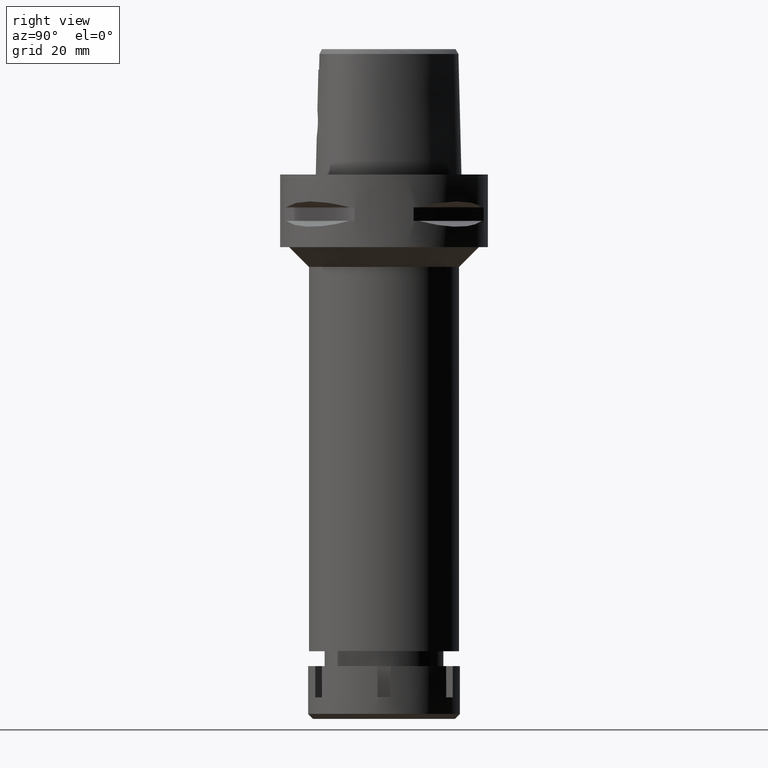
[diagram: clean part render]
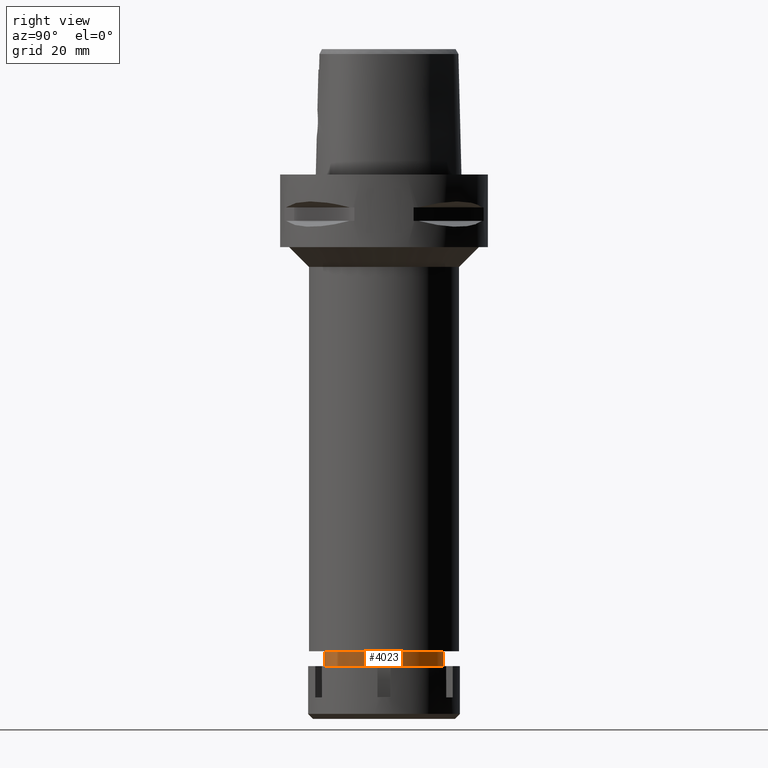
[diagram: same view with one face highlighted and labeled with its STEP entity id]
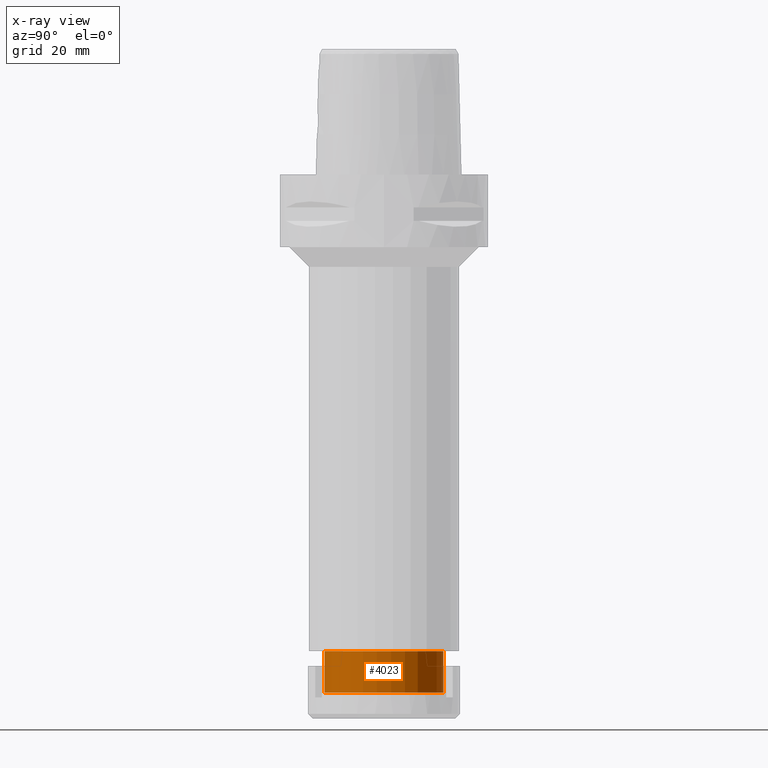
[diagram: x-ray of the same camera — body ghosted, the highlighted face saturated]
A machine part, right view. The second image highlights one B-rep face of the part: STEP entity #4023.
The next image is the same camera in x-ray: the body ghosted, the highlighted face saturated — about 0% of this face is hidden behind the body in this view.
In plain terms, the highlighted cylindrical surface (partial cylindrical patch) has radius 18 mm, axis along (0, 0, -1).
Its self-contained STEP definition (entity closure, byte-faithful):
#31 = EDGE_CURVE ( 'NONE', #2911, #3392, #583, .T. ) ;
#118 = CARTESIAN_POINT ( 'NONE',  ( 0.0000000000000000000, 18.00000000000000000, -144.5000000000000000 ) ) ;
#368 = DIRECTION ( 'NONE',  ( 0.0000000000000000000, 0.0000000000000000000, -1.000000000000000000 ) ) ;
#534 = DIRECTION ( 'NONE',  ( 0.0000000000000000000, 0.0000000000000000000, 1.000000000000000000 ) ) ;
#583 = CIRCLE ( 'NONE', #4000, 18.00000000000000000 ) ;
#739 = EDGE_LOOP ( 'NONE', ( #3977, #2343, #4575, #4087 ) ) ;
#1255 = DIRECTION ( 'NONE',  ( 0.0000000000000000000, 1.000000000000000000, 0.0000000000000000000 ) ) ;
#1270 = DIRECTION ( 'NONE',  ( 0.0000000000000000000, 0.0000000000000000000, -1.000000000000000000 ) ) ;
#1273 = EDGE_CURVE ( 'NONE', #3874, #1800, #4099, .T. ) ;
#1600 = VECTOR ( 'NONE', #368, 1000.000000000000000 ) ;
#1800 = VERTEX_POINT ( 'NONE', #5312 ) ;
#2056 = AXIS2_PLACEMENT_3D ( 'NONE', #3861, #1270, #3366 ) ;
#2247 = DIRECTION ( 'NONE',  ( 0.0000000000000000000, -1.000000000000000000, 0.0000000000000000000 ) ) ;
#2343 = ORIENTED_EDGE ( 'NONE', *, *, #4547, .T. ) ;
#2375 = LINE ( 'NONE', #5524, #1600 ) ;
#2599 = LINE ( 'NONE', #4316, #2776 ) ;
#2776 = VECTOR ( 'NONE', #3437, 1000.000000000000000 ) ;
#2911 = VERTEX_POINT ( 'NONE', #118 ) ;
#3303 = EDGE_CURVE ( 'NONE', #2911, #1800, #2375, .T. ) ;
#3366 = DIRECTION ( 'NONE',  ( 0.0000000000000000000, -1.000000000000000000, 0.0000000000000000000 ) ) ;
#3392 = VERTEX_POINT ( 'NONE', #5135 ) ;
#3437 = DIRECTION ( 'NONE',  ( 0.0000000000000000000, 0.0000000000000000000, -1.000000000000000000 ) ) ;
#3861 = CARTESIAN_POINT ( 'NONE',  ( 0.0000000000000000000, 1.320781572880000066E-14, 7.849999999999999645 ) ) ;
#3872 = DIRECTION ( 'NONE',  ( 0.0000000000000000000, 0.0000000000000000000, -1.000000000000000000 ) ) ;
#3874 = VERTEX_POINT ( 'NONE', #4475 ) ;
#3977 = ORIENTED_EDGE ( 'NONE', *, *, #31, .T. ) ;
#4000 = AXIS2_PLACEMENT_3D ( 'NONE', #5164, #3872, #1255 ) ;
#4023 = ADVANCED_FACE ( 'NONE', ( #5462 ), #4650, .T. ) ;
#4087 = ORIENTED_EDGE ( 'NONE', *, *, #3303, .F. ) ;
#4099 = CIRCLE ( 'NONE', #4548, 18.00000000000000000 ) ;
#4316 = CARTESIAN_POINT ( 'NONE',  ( 0.0000000000000000000, -18.00000000000000000, -144.5000000000000000 ) ) ;
#4384 = CARTESIAN_POINT ( 'NONE',  ( 0.0000000000000000000, 1.320781572880000066E-14, -157.0000000000000000 ) ) ;
#4475 = CARTESIAN_POINT ( 'NONE',  ( 0.0000000000000000000, -18.00000000000000000, -157.0000000000000000 ) ) ;
#4547 = EDGE_CURVE ( 'NONE', #3392, #3874, #2599, .T. ) ;
#4548 = AXIS2_PLACEMENT_3D ( 'NONE', #4384, #534, #2247 ) ;
#4575 = ORIENTED_EDGE ( 'NONE', *, *, #1273, .T. ) ;
#4650 = CYLINDRICAL_SURFACE ( 'NONE', #2056, 18.00000000000000000 ) ;
#5135 = CARTESIAN_POINT ( 'NONE',  ( 0.0000000000000000000, -18.00000000000000000, -144.5000000000000000 ) ) ;
#5164 = CARTESIAN_POINT ( 'NONE',  ( 0.0000000000000000000, 1.320781572880000066E-14, -144.5000000000000000 ) ) ;
#5312 = CARTESIAN_POINT ( 'NONE',  ( 0.0000000000000000000, 18.00000000000000000, -157.0000000000000000 ) ) ;
#5462 = FACE_OUTER_BOUND ( 'NONE', #739, .T. ) ;
#5524 = CARTESIAN_POINT ( 'NONE',  ( 0.0000000000000000000, 18.00000000000000000, -144.5000000000000000 ) ) ;